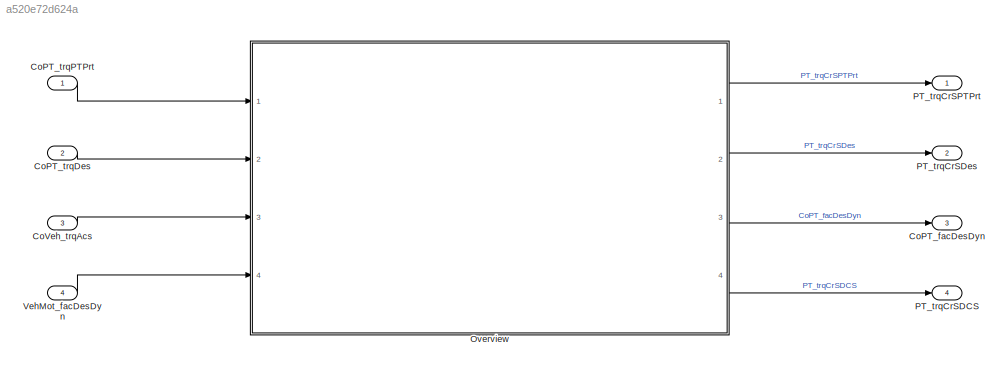
MODEL slx_a520e72d624a
KIND model
CONFIG AbsTol = auto
CONFIG EnableMultiTasking = off
CONFIG FixedStep = 0.001
CONFIG MaxStep = auto
CONFIG MinStep = auto
CONFIG RelTol = 1e-3
CONFIG SampleTimeConstraint = Unconstrained
CONFIG Solver = FixedStepDiscrete
CONFIG SolverName = FixedStepDiscrete
CONFIG StartTime = 0.0
CONFIG StopTime = Inf
BLOCK [Outport] CoPT_facDesDyn
  IconDisplay = Port number
  Port = 3
BLOCK [Inport] CoPT_trqDes
  Description = Total torque order for torque actuator (clutch torque)
  IconDisplay = Port number
  OutDataTypeStr = Torq
  OutMax = 3000
  OutMin = -3000
  Port = 2
  PortDimensions = [1 1]
  Unit = Nm
BLOCK [Inport] CoPT_trqPTPrt
  Description = Drive train protection torque (clutch torque)
  IconDisplay = Port number
  OutDataTypeStr = Torq
  OutMax = 3000
  OutMin = -3000
  PortDimensions = [1 1]
  Unit = Nm
BLOCK [Inport] CoVeh_trqAcs
  Description = message for demand of accessories
  IconDisplay = Port number
  OutDataTypeStr = Torq
  OutMax = 3276.7
  OutMin = -3276.8
  Port = 3
  PortDimensions = [1 1]
  Unit = Nm
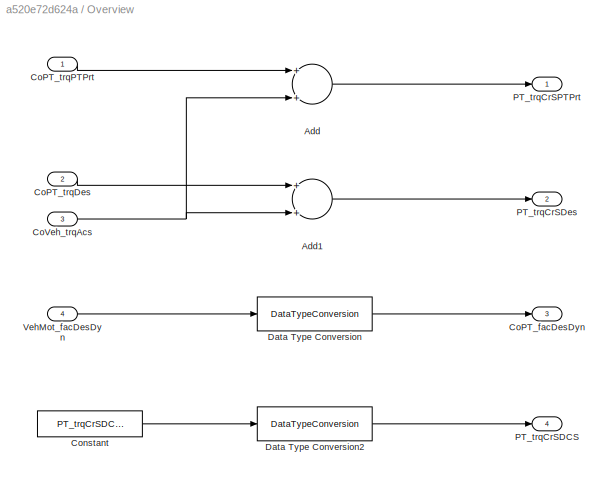
BLOCK [SubSystem] Overview
  Ports = [4, 4]
  RequestExecContextInheritance = off
BLOCK [Sum] Overview/Add
  InputSameDT = off
  OutDataTypeStr = Inherit: Inherit via internal rule
  Ports = [2, 1]
  SaturateOnIntegerOverflow = off
BLOCK [Sum] Overview/Add1
  InputSameDT = off
  OutDataTypeStr = Inherit: Inherit via internal rule
  Ports = [2, 1]
  SaturateOnIntegerOverflow = off
BLOCK [Outport] Overview/CoPT_facDesDyn
  IconDisplay = Port number
  Port = 3
BLOCK [Inport] Overview/CoPT_trqDes
  IconDisplay = Port number
  Port = 2
BLOCK [Inport] Overview/CoPT_trqPTPrt
  IconDisplay = Port number
BLOCK [Inport] Overview/CoVeh_trqAcs
  IconDisplay = Port number
  Port = 3
BLOCK [Constant] Overview/Constant
  Value = PT_trqCrSDCS_C
BLOCK [DataTypeConversion] Overview/Data Type Conversion
  RndMeth = Floor
  SaturateOnIntegerOverflow = off
BLOCK [DataTypeConversion] Overview/Data Type Conversion2
  RndMeth = Floor
  SaturateOnIntegerOverflow = off
BLOCK [Outport] Overview/PT_trqCrSDCS
  IconDisplay = Port number
  Port = 4
BLOCK [Outport] Overview/PT_trqCrSDes
  IconDisplay = Port number
  Port = 2
BLOCK [Outport] Overview/PT_trqCrSPTPrt
  IconDisplay = Port number
BLOCK [Inport] Overview/VehMot_facDesDyn
  IconDisplay = Port number
  Port = 4
BLOCK [Outport] PT_trqCrSDCS
  IconDisplay = Port number
  Port = 4
BLOCK [Outport] PT_trqCrSDes
  IconDisplay = Port number
  Port = 2
BLOCK [Outport] PT_trqCrSPTPrt
  IconDisplay = Port number
BLOCK [Inport] VehMot_facDesDyn
  Description = Dynamic Fac_10 for driver demand
  IconDisplay = Port number
  OutDataTypeStr = Fac_10
  OutMax = 3.999
  OutMin = -4
  Port = 4
  PortDimensions = [1 1]
LINE CoPT_trqDes:1 -> Overview:2
LINE CoPT_trqPTPrt:1 -> Overview:1
LINE CoVeh_trqAcs:1 -> Overview:3
LINE Overview/Add1:1 -> Overview/PT_trqCrSDes:1
LINE Overview/Add:1 -> Overview/PT_trqCrSPTPrt:1
LINE Overview/CoPT_trqDes:1 -> Overview/Add1:1
LINE Overview/CoPT_trqPTPrt:1 -> Overview/Add:1
NET Overview/CoVeh_trqAcs:1 -> Overview/Add1:2, Overview/Add:2
LINE Overview/Constant:1 -> Overview/Data Type Conversion2:1
LINE Overview/Data Type Conversion2:1 -> Overview/PT_trqCrSDCS:1
LINE Overview/Data Type Conversion:1 -> Overview/CoPT_facDesDyn:1
LINE Overview/VehMot_facDesDyn:1 -> Overview/Data Type Conversion:1
LINE Overview:1 -> PT_trqCrSPTPrt:1
LINE Overview:2 -> PT_trqCrSDes:1
LINE Overview:3 -> CoPT_facDesDyn:1
LINE Overview:4 -> PT_trqCrSDCS:1
LINE VehMot_facDesDyn:1 -> Overview:4
note: NET lines group one-source signal fan-out (src -> all destinations, sorted); 1:1 wires keep LINE
